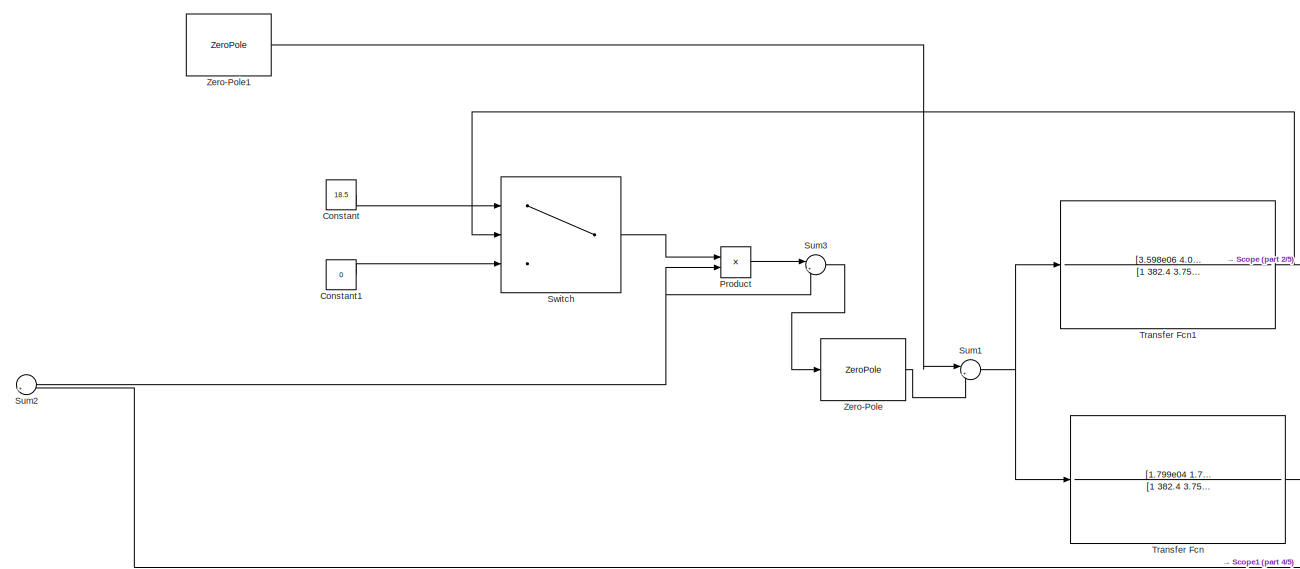
[diagram: root canvas - part 1/5, top center region]
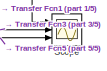
[diagram: root canvas - part 2/5, middle right region]
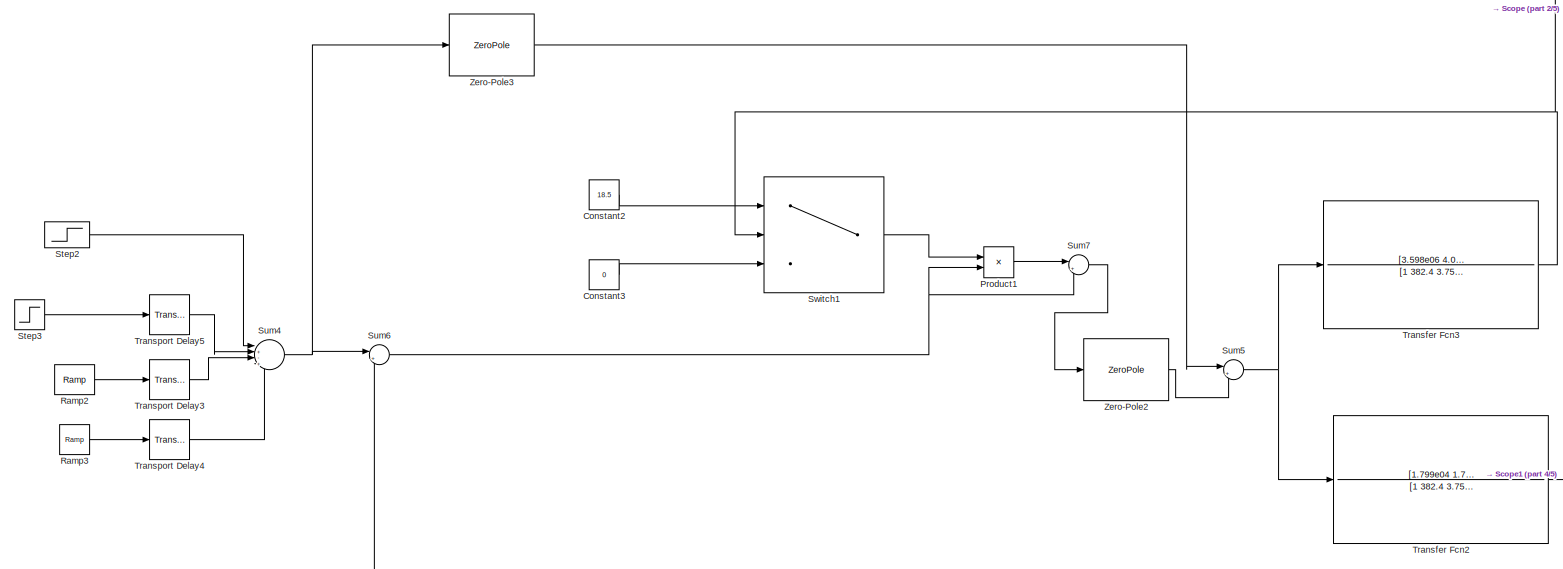
[diagram: root canvas - part 3/5, central region]
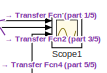
[diagram: root canvas - part 4/5, middle right region]
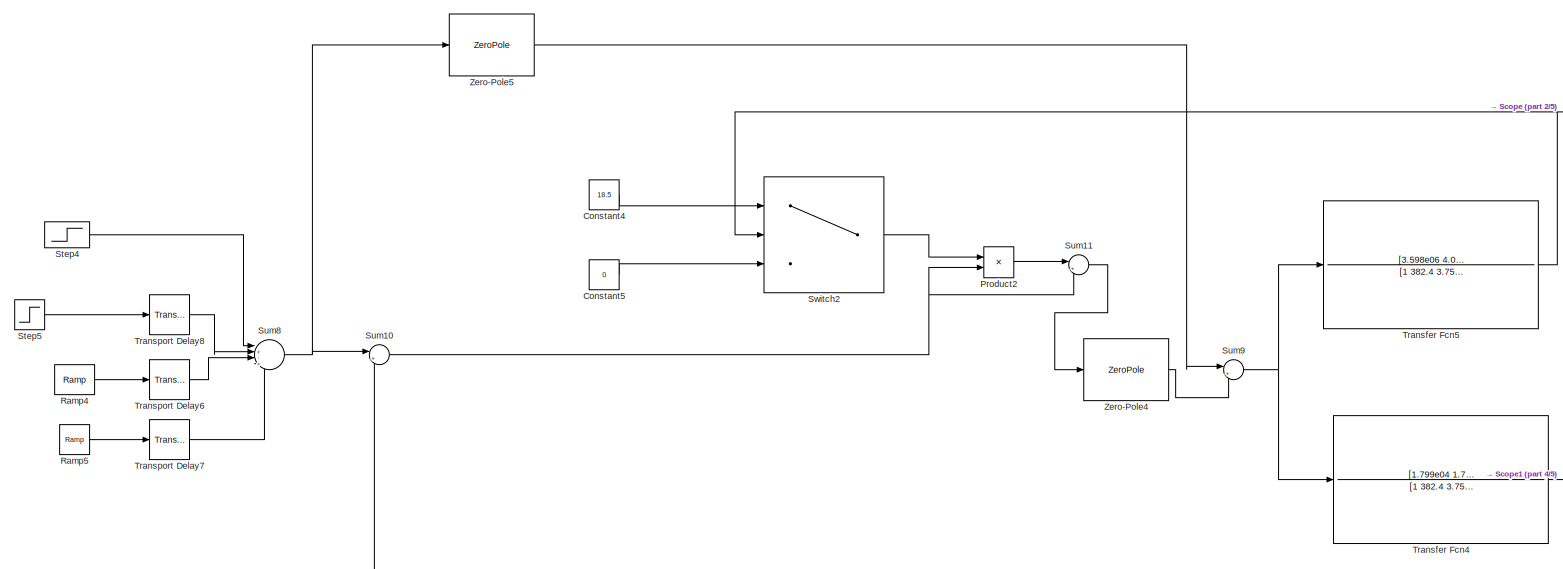
[diagram: root canvas - part 5/5, bottom center region]
MODEL slx_f909dfa167c4
KIND model
CONFIG AbsTol = auto
CONFIG EnableMultiTasking = off
CONFIG FixedStep = auto
CONFIG MaxStep = auto
CONFIG MinStep = auto
CONFIG RelTol = 1e-3
CONFIG SampleTimeConstraint = Unconstrained
CONFIG Solver = VariableStepAuto
CONFIG SolverName = VariableStepAuto
CONFIG StartTime = 0.0
CONFIG StopTime = 10.0
BLOCK [Constant] Constant
  Value = 18.5
BLOCK [Constant] Constant1
  Value = 0
BLOCK [Constant] Constant2
  Value = 18.5
BLOCK [Constant] Constant3
  Value = 0
BLOCK [Constant] Constant4
  Value = 18.5
BLOCK [Constant] Constant5
  Value = 0
BLOCK [Product] Product
  Ports = [2, 1]
BLOCK [Product] Product1
  Ports = [2, 1]
BLOCK [Product] Product2
  NameLocation = left
  Ports = [2, 1]
BLOCK [Reference] Ramp2  REF=simulink/Sources/Ramp
  Ports = [0, 1]
  SourceBlock = simulink/Sources/Ramp
  SourceProductBaseCode = SL
  SourceType = Ramp
BLOCK [Reference] Ramp3  REF=simulink/Sources/Ramp
  Ports = [0, 1]
  SourceBlock = simulink/Sources/Ramp
  SourceProductBaseCode = SL
  SourceType = Ramp
BLOCK [Reference] Ramp4  REF=simulink/Sources/Ramp
  Ports = [0, 1]
  SourceBlock = simulink/Sources/Ramp
  SourceProductBaseCode = SL
  SourceType = Ramp
BLOCK [Reference] Ramp5  REF=simulink/Sources/Ramp
  Ports = [0, 1]
  SourceBlock = simulink/Sources/Ramp
  SourceProductBaseCode = SL
  SourceType = Ramp
BLOCK [Scope] Scope
  Floating = off
  NumInputPorts = 3
  Ports = [3]
  ScopeSpecificationString = Simulink.scopes.TimeScopeBlockCfg('CurrentConfiguration', extmgr.ConfigurationSet(extmgr.Configuration('Core','General UI',true),extmgr.Configuration('Core','Source UI',true),extmgr.Configuration('Sources','WiredSimulink',true),extmgr.Configuration('Visuals','Time Domain',true,'SerializedDisplays',{struct('MinYLimReal','-1693.33936','MaxYLimReal','1827.39016','YLabelReal','','MinYLimMag','  0.0000...<+1437ch>
BLOCK [Scope] Scope1
  Floating = off
  NumInputPorts = 4
  Ports = [4]
  ScopeSpecificationString = Simulink.scopes.TimeScopeBlockCfg('CurrentConfiguration', extmgr.ConfigurationSet(extmgr.Configuration('Core','General UI',true),extmgr.Configuration('Core','Source UI',true),extmgr.Configuration('Sources','WiredSimulink',true,'DataLoggingVariableName','ScopeData1'),extmgr.Configuration('Visuals','Time Domain',true,'SerializedDisplays',{struct('MinYLimReal','-2.68284','MaxYLimReal','24.1456','YLab...<+1459ch>
BLOCK [Step] Step2
  After = 5
  SampleTime = 0
  Time = 0.00001
BLOCK [Step] Step3
  After = 15
  SampleTime = 0
  Time = 0.00001
BLOCK [Step] Step4
  After = 5
  SampleTime = 0
  Time = 0.00001
BLOCK [Step] Step5
  After = 15
  SampleTime = 0
  Time = 0.00001
BLOCK [Sum] Sum1
  Inputs = |++
  NameLocation = top
  Ports = [2, 1]
BLOCK [Sum] Sum10
  Inputs = |+-
  Ports = [2, 1]
BLOCK [Sum] Sum11
  Inputs = |++
  Ports = [2, 1]
BLOCK [Sum] Sum2
  Inputs = |+-
  Ports = [2, 1]
BLOCK [Sum] Sum3
  Inputs = |++
  Ports = [2, 1]
BLOCK [Sum] Sum4
  Inputs = |+-+-
  Ports = [4, 1]
BLOCK [Sum] Sum5
  Inputs = |++
  NameLocation = top
  Ports = [2, 1]
BLOCK [Sum] Sum6
  Inputs = |+-
  Ports = [2, 1]
BLOCK [Sum] Sum7
  Inputs = |++
  Ports = [2, 1]
BLOCK [Sum] Sum8
  Inputs = |+-+-
  Ports = [4, 1]
BLOCK [Sum] Sum9
  Inputs = |++
  NameLocation = top
  Ports = [2, 1]
BLOCK [Switch] Switch
  Criteria = u2 > Threshold
  InputSameDT = off
  SaturateOnIntegerOverflow = off
BLOCK [Switch] Switch1
  Criteria = u2 > Threshold
  InputSameDT = off
  SaturateOnIntegerOverflow = off
  Threshold = 80
BLOCK [Switch] Switch2
  Criteria = u2 > Threshold
  InputSameDT = off
  SaturateOnIntegerOverflow = off
  Threshold = 6
BLOCK [TransferFcn] Transfer Fcn
  Denominator = [1 382.4 3.758e04 1.934e05]
  Numerator = [1.799e04 1.799e05]
BLOCK [TransferFcn] Transfer Fcn1
  Denominator = [1 382.4 3.758e04 1.934e05]
  Numerator = [3.598e06 4.039e-09]
BLOCK [TransferFcn] Transfer Fcn2
  Denominator = [1 382.4 3.758e04 1.934e05]
  Numerator = [1.799e04 1.799e05]
BLOCK [TransferFcn] Transfer Fcn3
  Denominator = [1 382.4 3.758e04 1.934e05]
  Numerator = [3.598e06 4.039e-09]
BLOCK [TransferFcn] Transfer Fcn4
  Denominator = [1 382.4 3.758e04 1.934e05]
  Numerator = [1.799e04 1.799e05]
BLOCK [TransferFcn] Transfer Fcn5
  Denominator = [1 382.4 3.758e04 1.934e05]
  Numerator = [3.598e06 4.039e-09]
BLOCK [TransportDelay] Transport Delay3
  Ports = [1, 1]
BLOCK [TransportDelay] Transport Delay4
  DelayTime = 1.02
  Ports = [1, 1]
BLOCK [TransportDelay] Transport Delay5
  DelayTime = 5
  Ports = [1, 1]
BLOCK [TransportDelay] Transport Delay6
  Ports = [1, 1]
BLOCK [TransportDelay] Transport Delay7
  DelayTime = 1.02
  Ports = [1, 1]
BLOCK [TransportDelay] Transport Delay8
  DelayTime = 5
  Ports = [1, 1]
BLOCK [ZeroPole] Zero-Pole
  Gain = [0.4]
  Poles = [0]
  Zeros = []
BLOCK [ZeroPole] Zero-Pole1
  Poles = []
  Zeros = []
BLOCK [ZeroPole] Zero-Pole2
  Gain = [0.4]
  Poles = [0]
  Zeros = []
BLOCK [ZeroPole] Zero-Pole3
  Poles = []
  Zeros = []
BLOCK [ZeroPole] Zero-Pole4
  Gain = [0.4]
  Poles = [0]
  Zeros = []
BLOCK [ZeroPole] Zero-Pole5
  Poles = []
  Zeros = []
LINE Constant1:1 -> Switch:3
LINE Constant2:1 -> Switch1:1
LINE Constant3:1 -> Switch1:3
LINE Constant4:1 -> Switch2:1
LINE Constant5:1 -> Switch2:3
LINE Constant:1 -> Switch:1
LINE Product1:1 -> Sum7:1
LINE Product2:1 -> Sum11:1
LINE Product:1 -> Sum3:1
LINE Ramp2:1 -> Transport Delay3:1
LINE Ramp3:1 -> Transport Delay4:1
LINE Ramp4:1 -> Transport Delay6:1
LINE Ramp5:1 -> Transport Delay7:1
LINE Step2:1 -> Sum4:1
LINE Step3:1 -> Transport Delay5:1
LINE Step4:1 -> Sum8:1
LINE Step5:1 -> Transport Delay8:1
NET Sum10:1 -> Product2:2, Sum11:2
LINE Sum11:1 -> Zero-Pole4:1
NET Sum1:1 -> Transfer Fcn1:1, Transfer Fcn:1
NET Sum2:1 -> Product:2, Sum3:2
LINE Sum3:1 -> Zero-Pole:1
NET Sum4:1 -> Sum6:1, Zero-Pole3:1
NET Sum5:1 -> Transfer Fcn2:1, Transfer Fcn3:1
NET Sum6:1 -> Product1:2, Sum7:2
LINE Sum7:1 -> Zero-Pole2:1
NET Sum8:1 -> Sum10:1, Zero-Pole5:1
NET Sum9:1 -> Transfer Fcn4:1, Transfer Fcn5:1
LINE Switch1:1 -> Product1:1
LINE Switch2:1 -> Product2:1
LINE Switch:1 -> Product:1
NET Transfer Fcn1:1 -> Scope:1, Switch:2
NET Transfer Fcn2:1 -> Scope1:2, Sum6:2
NET Transfer Fcn3:1 -> Scope:2, Switch1:2
NET Transfer Fcn4:1 -> Scope1:3, Sum10:2
NET Transfer Fcn5:1 -> Scope:3, Switch2:2
NET Transfer Fcn:1 -> Scope1:1, Sum2:2
LINE Transport Delay3:1 -> Sum4:3
LINE Transport Delay4:1 -> Sum4:4
LINE Transport Delay5:1 -> Sum4:2
LINE Transport Delay6:1 -> Sum8:3
LINE Transport Delay7:1 -> Sum8:4
LINE Transport Delay8:1 -> Sum8:2
LINE Zero-Pole1:1 -> Sum1:1
LINE Zero-Pole2:1 -> Sum5:2
LINE Zero-Pole3:1 -> Sum5:1
LINE Zero-Pole4:1 -> Sum9:2
LINE Zero-Pole5:1 -> Sum9:1
LINE Zero-Pole:1 -> Sum1:2
note: NET lines group one-source signal fan-out (src -> all destinations, sorted); 1:1 wires keep LINE
